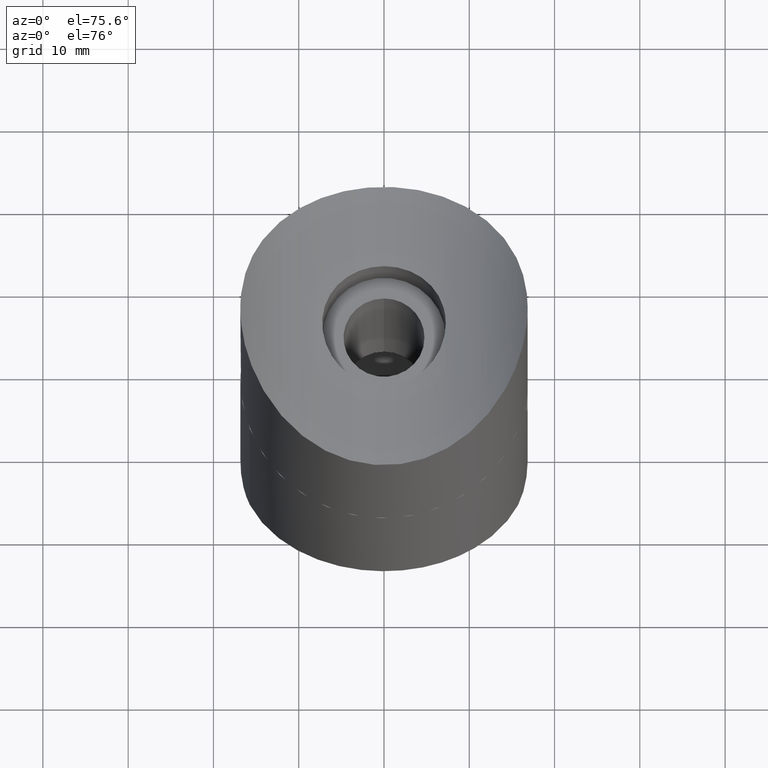
[diagram: clean part render]
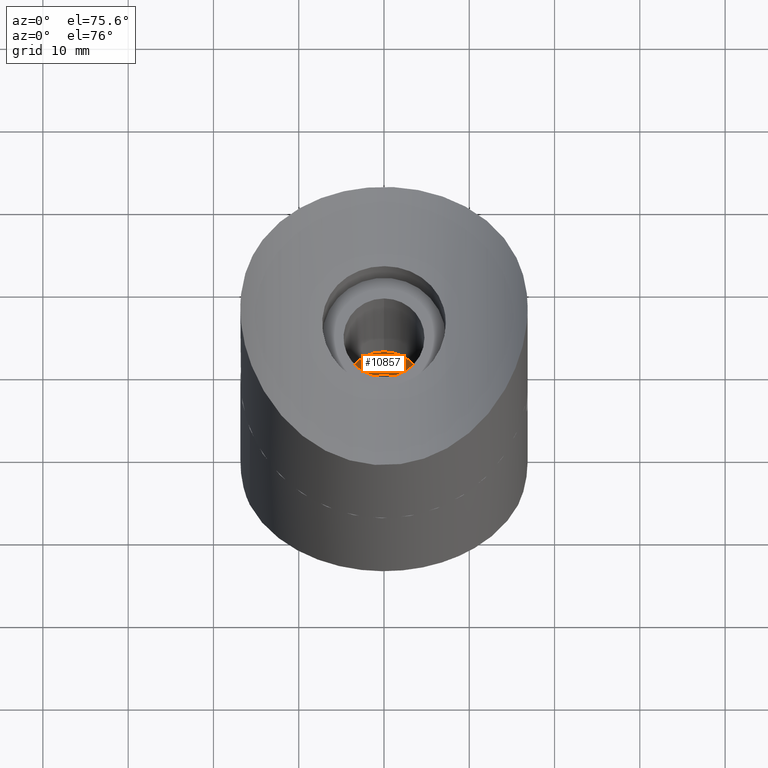
[diagram: same view with one face highlighted and labeled with its STEP entity id]
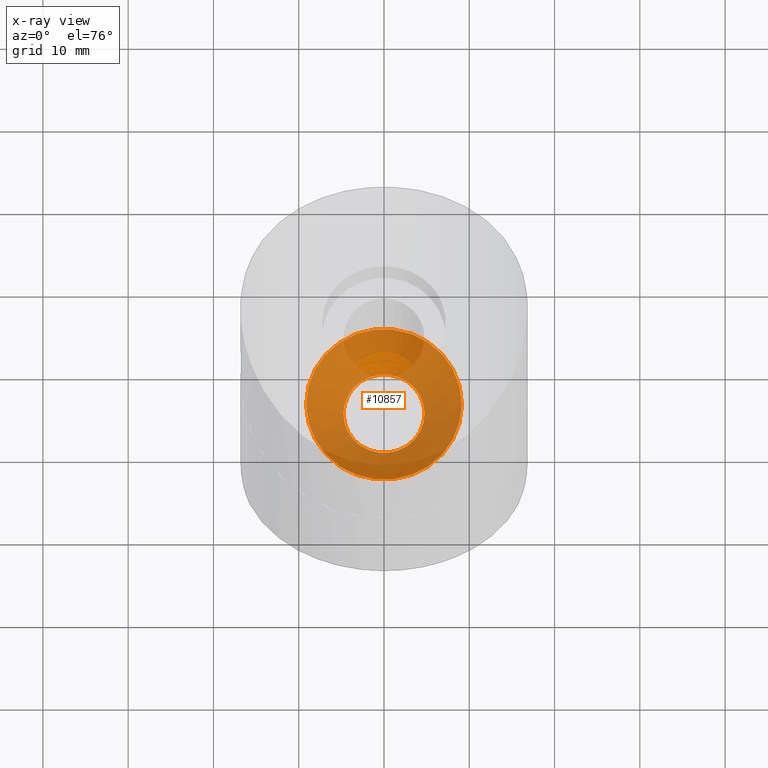
[diagram: x-ray of the same camera — body ghosted, the highlighted face saturated]
A machine part, auxiliary view. The second image highlights one B-rep face of the part: STEP entity #10857.
The next image is the same camera in x-ray: the body ghosted, the highlighted face saturated — about 93% of this face is hidden behind the body in this view.
In plain terms, the highlighted conical surface has half-angle 45 deg.
Its self-contained STEP definition (entity closure, byte-faithful):
#270 = CARTESIAN_POINT ( 'NONE',  ( -4.750000000000000000, 0.000000000000000000, 16.37499999999985434 ) ) ;
#666 = CARTESIAN_POINT ( 'NONE',  ( 0.000000000000000000, 0.000000000000000000, 16.37499999999985434 ) ) ;
#848 = CARTESIAN_POINT ( 'NONE',  ( 0.000000000000000000, 0.000000000000000000, 11.99999999999992539 ) ) ;
#1811 = DIRECTION ( 'NONE',  ( -1.000000000000000000, 0.000000000000000000, 0.000000000000000000 ) ) ;
#2009 = VERTEX_POINT ( 'NONE', #8908 ) ;
#2073 = EDGE_LOOP ( 'NONE', ( #2145 ) ) ;
#2145 = ORIENTED_EDGE ( 'NONE', *, *, #2711, .T. ) ;
#2711 = EDGE_CURVE ( 'NONE', #2009, #2009, #6766, .T. ) ;
#2837 = DIRECTION ( 'NONE',  ( 0.000000000000000000, 0.000000000000000000, -1.000000000000000000 ) ) ;
#3084 = AXIS2_PLACEMENT_3D ( 'NONE', #666, #2837, #1811 ) ;
#4305 = AXIS2_PLACEMENT_3D ( 'NONE', #12674, #12618, #8235 ) ;
#5868 = FACE_BOUND ( 'NONE', #13350, .T. ) ;
#6010 = EDGE_CURVE ( 'NONE', #11189, #11189, #8559, .T. ) ;
#6766 = CIRCLE ( 'NONE', #13628, 9.124999999999998224 ) ;
#7779 = CONICAL_SURFACE ( 'NONE', #4305, 9.124999999999998224, 0.7853981633974477239 ) ;
#7965 = ORIENTED_EDGE ( 'NONE', *, *, #6010, .F. ) ;
#8235 = DIRECTION ( 'NONE',  ( -1.000000000000000000, 0.000000000000000000, 0.000000000000000000 ) ) ;
#8559 = CIRCLE ( 'NONE', #3084, 4.750000000000000000 ) ;
#8908 = CARTESIAN_POINT ( 'NONE',  ( -9.124999999999998224, 0.000000000000000000, 11.99999999999992539 ) ) ;
#9600 = DIRECTION ( 'NONE',  ( -1.000000000000000000, 0.000000000000000000, 0.000000000000000000 ) ) ;
#10857 = ADVANCED_FACE ( 'NONE', ( #11759, #5868 ), #7779, .F. ) ;
#11189 = VERTEX_POINT ( 'NONE', #270 ) ;
#11728 = DIRECTION ( 'NONE',  ( 0.000000000000000000, 0.000000000000000000, -1.000000000000000000 ) ) ;
#11759 = FACE_OUTER_BOUND ( 'NONE', #2073, .T. ) ;
#12618 = DIRECTION ( 'NONE',  ( 0.000000000000000000, 0.000000000000000000, -1.000000000000000000 ) ) ;
#12674 = CARTESIAN_POINT ( 'NONE',  ( 0.000000000000000000, 0.000000000000000000, 11.99999999999992539 ) ) ;
#13350 = EDGE_LOOP ( 'NONE', ( #7965 ) ) ;
#13628 = AXIS2_PLACEMENT_3D ( 'NONE', #848, #11728, #9600 ) ;